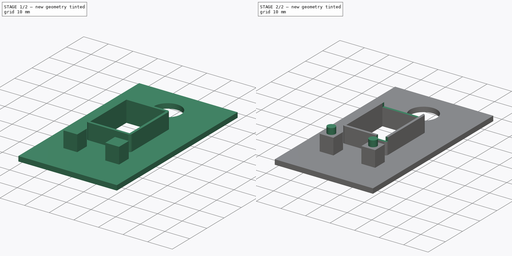
[diagram: build sequence overview — one tinted view per stage of 2, left to right]
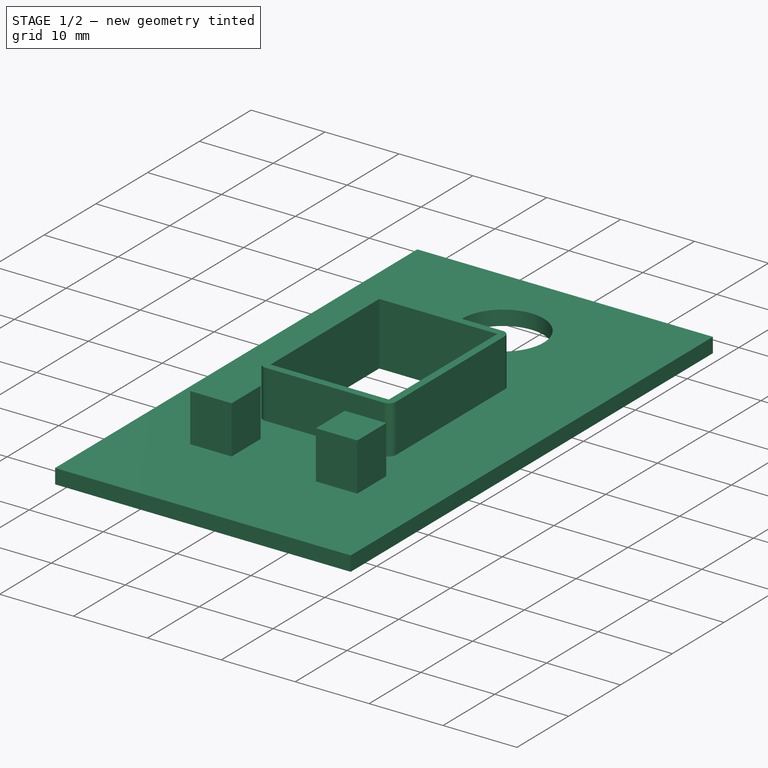
[diagram: stage 1 of 2 — iso view after this stage's code; geometry added in this stage tinted green]
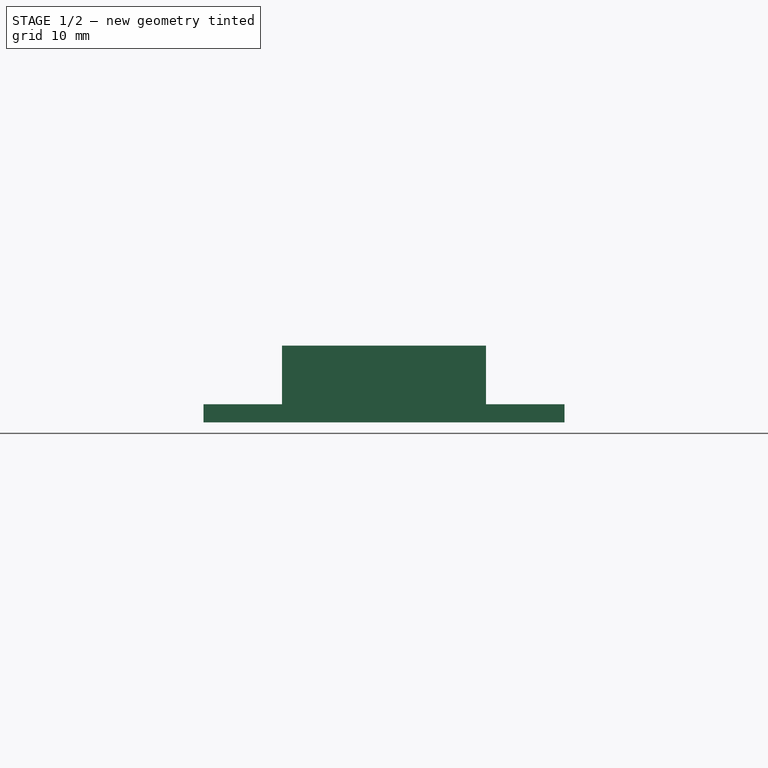
[diagram: stage 1 of 2 — front view after this stage's code; geometry added in this stage tinted green]
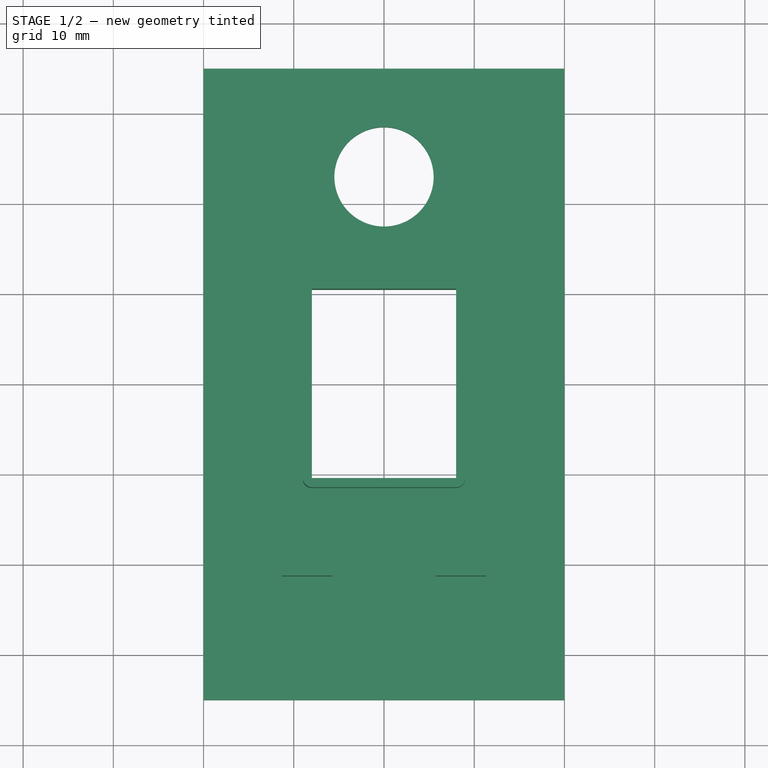
[diagram: stage 1 of 2 — top view after this stage's code; geometry added in this stage tinted green]
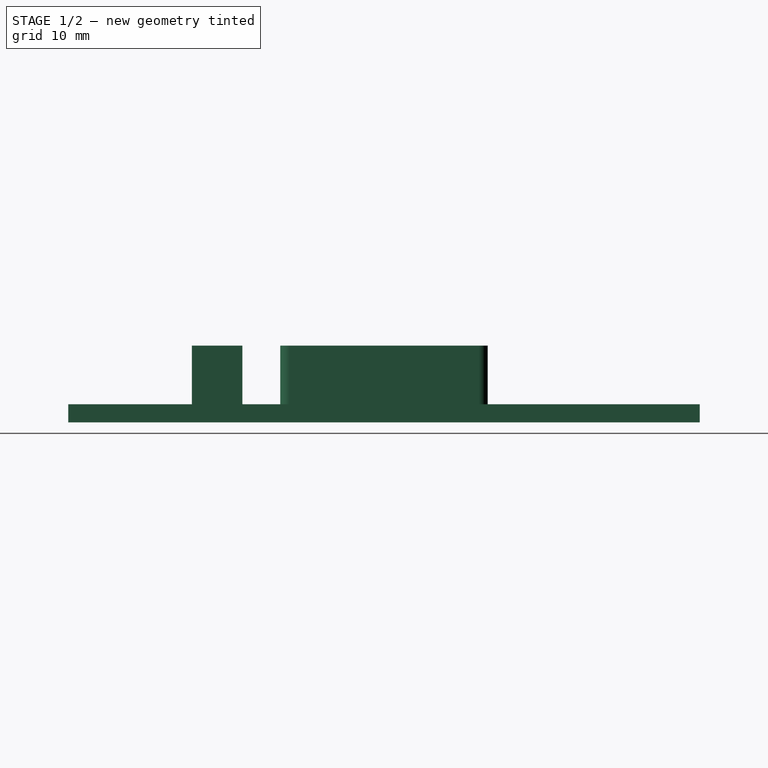
[diagram: stage 1 of 2 — right view after this stage's code; geometry added in this stage tinted green]
FCSTD DOCUMENT  (FreeCAD 0.22R37249 (Git))
Label: multi-sensor-hass-lid
License: All rights reserved
LicenseURL: http://en.wikipedia.org/wiki/All_rights_reserved
objects: Sketcher::SketchObject×4, PartDesign::Pad×3, PartDesign::Pocket×1, PartDesign::Body×1
note: 13 computed .brp shape members not serialized (recipe doc carries the construction recipe); baked Part::Feature solids carry a one-line shape summary decoded from their .brp

FEATURE [Sketcher::SketchObject] Sketch
  AttachmentSupport = -> [XY_Plane]
  FullyConstrained = true
  MapMode = 5
  sketch-geometry (11):
    g0: LineSegment StartX=-20 StartY=35 StartZ=0 EndX=-20 EndY=-35 EndZ=0
    g1: LineSegment StartX=-20 StartY=-35 StartZ=0 EndX=20 EndY=-35 EndZ=0
    g2: LineSegment StartX=20 StartY=-35 StartZ=0 EndX=20 EndY=35 EndZ=0
    g3: LineSegment StartX=20 StartY=35 StartZ=0 EndX=-20 EndY=35 EndZ=0
    g4: GeomPoint X=0 Y=0 Z=0
    g5: Circle CenterX=0 CenterY=23 CenterZ=0 NormalX=0 NormalY=0 NormalZ=1 AngleXU=0 Radius=5.5
    g6: LineSegment StartX=-8 StartY=-10.5 StartZ=0 EndX=8 EndY=-10.5 EndZ=0
    g7: LineSegment StartX=8 StartY=-10.5 StartZ=0 EndX=8 EndY=10.5 EndZ=0
    g8: LineSegment StartX=8 StartY=10.5 StartZ=0 EndX=-8 EndY=10.5 EndZ=0
    g9: LineSegment StartX=-8 StartY=10.5 StartZ=0 EndX=-8 EndY=-10.5 EndZ=0
    g10: GeomPoint X=0 Y=0 Z=0
  constraints (27):
    c: Coincident(g0,g1)
    c: Coincident(g1,g2)
    c: Coincident(g2,g3)
    c: Coincident(g3,g0)
    c: Vertical(g0)
    c: Vertical(g2)
    c: Horizontal(g1)
    c: Horizontal(g3)
    c: Symmetric(g2,g0,g4)
    c: Coincident(g4,g-1)
    c: DistanceX(g1,g1) = 40
    c: DistanceY(g0,g0) = 70
    c: PointOnObject(g5,g-2)
    c: Diameter(g5) = 11
    c: Distance(g5,g3) = 12
    c: Coincident(g6,g7)
    c: Coincident(g7,g8)
    c: Coincident(g8,g9)
    c: Coincident(g9,g6)
    c: Horizontal(g6)
    c: Horizontal(g8)
    c: Vertical(g7)
    c: Vertical(g9)
    c: Symmetric(g8,g6,g10)
    c: Distance(g7,g9) = 16
    c: Distance(g6,g8) = 21
    c: Coincident(g10,g4)
FEATURE [PartDesign::Pad] Pad
  Direction = (0,0,1)
  Length = 2
  Length2 = 10
  Profile = -> Sketch
  ReferenceAxis = -> Sketch [N_Axis]
  Suppressed = false
  Type = 0
FEATURE [Sketcher::SketchObject] Sketch001
  AttachmentSupport = -> [Pad]
  ExternalGeometry = -> [Pad]
  FullyConstrained = true
  MapMode = 5
  Placement = pos=(0,0,2) rot=(0,0,1;0rad)
  sketch-geometry (23):
    g0: LineSegment StartX=-8 StartY=10.5 StartZ=0 EndX=-8 EndY=-10.5 EndZ=0
    g1: LineSegment StartX=-8 StartY=-10.5 StartZ=0 EndX=8 EndY=-10.5 EndZ=0
    g2: LineSegment StartX=8 StartY=-10.5 StartZ=0 EndX=8 EndY=10.5 EndZ=0
    g3: LineSegment StartX=8 StartY=10.5 StartZ=0 EndX=-8 EndY=10.5 EndZ=0
    g4: GeomPoint X=0 Y=2.9e-15 Z=0
    g5: LineSegment StartX=-11.3 StartY=-15.7 StartZ=0 EndX=-11.3 EndY=-21.3 EndZ=0
    g6: LineSegment StartX=-11.3 StartY=-21.3 StartZ=0 EndX=-5.7 EndY=-21.3 EndZ=0
    g7: LineSegment StartX=-5.7 StartY=-21.3 StartZ=0 EndX=-5.7 EndY=-15.7 EndZ=0
    g8: LineSegment StartX=-5.7 StartY=-15.7 StartZ=0 EndX=-11.3 EndY=-15.7 EndZ=0
    g9: GeomPoint X=-8.5 Y=-18.5 Z=0
    g10: LineSegment StartX=5.7 StartY=-15.7 StartZ=0 EndX=5.7 EndY=-21.3 EndZ=0
    g11: LineSegment StartX=5.7 StartY=-21.3 StartZ=0 EndX=11.3 EndY=-21.3 EndZ=0
    g12: LineSegment StartX=11.3 StartY=-21.3 StartZ=0 EndX=11.3 EndY=-15.7 EndZ=0
    g13: LineSegment StartX=11.3 StartY=-15.7 StartZ=0 EndX=5.7 EndY=-15.7 EndZ=0
    g14: GeomPoint X=8.5 Y=-18.5 Z=0
    g15: LineSegment StartX=-8 StartY=-11.5 StartZ=0 EndX=8 EndY=-11.5 EndZ=0
    g16: ArcOfCircle CenterX=8 CenterY=-10.5 CenterZ=0 NormalX=0 NormalY=0 NormalZ=-1 AngleXU=1.5708 Radius=1 StartAngle=1.5708 EndAngle=3.14159
    g17: LineSegment StartX=9 StartY=-10.5 StartZ=0 EndX=9 EndY=10.5 EndZ=0
    g18: ArcOfCircle CenterX=8 CenterY=10.5 CenterZ=0 NormalX=0 NormalY=0 NormalZ=-1 AngleXU=0 Radius=1 StartAngle=1.5708 EndAngle=3.14159
    g19: LineSegment StartX=8 StartY=11.5 StartZ=0 EndX=-8 EndY=11.5 EndZ=0
    g20: ArcOfCircle CenterX=-8 CenterY=10.5 CenterZ=0 NormalX=0 NormalY=0 NormalZ=-1 AngleXU=-1.5708 Radius=1 StartAngle=1.5708 EndAngle=3.14159
    g21: LineSegment StartX=-9 StartY=10.5 StartZ=0 EndX=-9 EndY=-10.5 EndZ=0
    g22: ArcOfCircle CenterX=-8 CenterY=-10.5 CenterZ=0 NormalX=0 NormalY=0 NormalZ=-1 AngleXU=-3.14159 Radius=1 StartAngle=1.5708 EndAngle=3.14159
  constraints (52):
    c: Coincident(g0,g1)
    c: Coincident(g1,g2)
    c: Coincident(g2,g3)
    c: Coincident(g3,g0)
    c: Vertical(g0)
    c: Horizontal(g1)
    c: Horizontal(g3)
    c: Symmetric(g2,g0,g4)
    c: PointOnObject(g4,g-2)
    c: Coincident(g1,g-5)
    c: Coincident(g5,g6)
    c: Coincident(g6,g7)
    c: Coincident(g7,g8)
    c: Coincident(g8,g5)
    c: Vertical(g5)
    c: Vertical(g7)
    c: Horizontal(g6)
    c: Horizontal(g8)
    c: Symmetric(g7,g5,g9)
    c: Coincident(g10,g11)
    c: Coincident(g11,g12)
    c: Coincident(g12,g13)
    c: Coincident(g13,g10)
    c: Vertical(g10)
    c: Vertical(g12)
    c: Horizontal(g11)
    c: Horizontal(g13)
    c: Symmetric(g12,g10,g14)
    c: Equal(g5,g8)
    c: Equal(g8,g10)
    c: Equal(g10,g13)
    c: DistanceX(g6,g6) = 5.6
    c: Symmetric(g9,g14,g-2)
    c: Coincident(g2,g-4)
    c: Tangent(g15,g16) = -1.5708
    c: Tangent(g15,g22) = -1.5708
    c: Tangent(g16,g17) = -1.5708
    c: Tangent(g17,g18) = -1.5708
    c: Tangent(g18,g19) = -1.5708
    c: Tangent(g19,g20) = -1.5708
    c: Tangent(g20,g21) = -1.5708
    c: Tangent(g21,g22) = -1.5708
    c: Coincident(g22,g0)
    c: DistanceY(g9,g0) = 8
    c: DistanceX(g9,g0) = 0.5
    c: Coincident(g20,g0)
    c: Coincident(g18,g2)
    c: Coincident(g16,g1)
    c: Parallel(g17,g21)
    c: Parallel(g15,g19)
    c: Parallel(g15,g1)
    c: Distance(g17,g2) = 1
FEATURE [PartDesign::Pad] Pad001
  BaseFeature = -> Pad
  Direction = (0,0,1)
  Length = 6.5
  Length2 = 10
  Profile = -> Sketch001
  ReferenceAxis = -> Sketch001 [N_Axis]
  Suppressed = false
  Type = 0
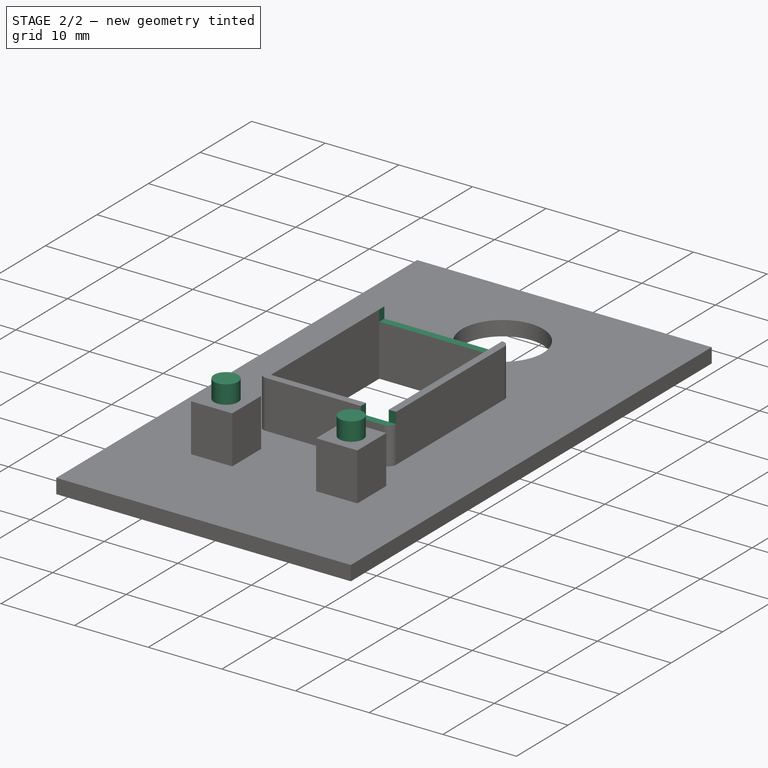
[diagram: stage 2 of 2 — iso view after this stage's code; geometry added in this stage tinted green]
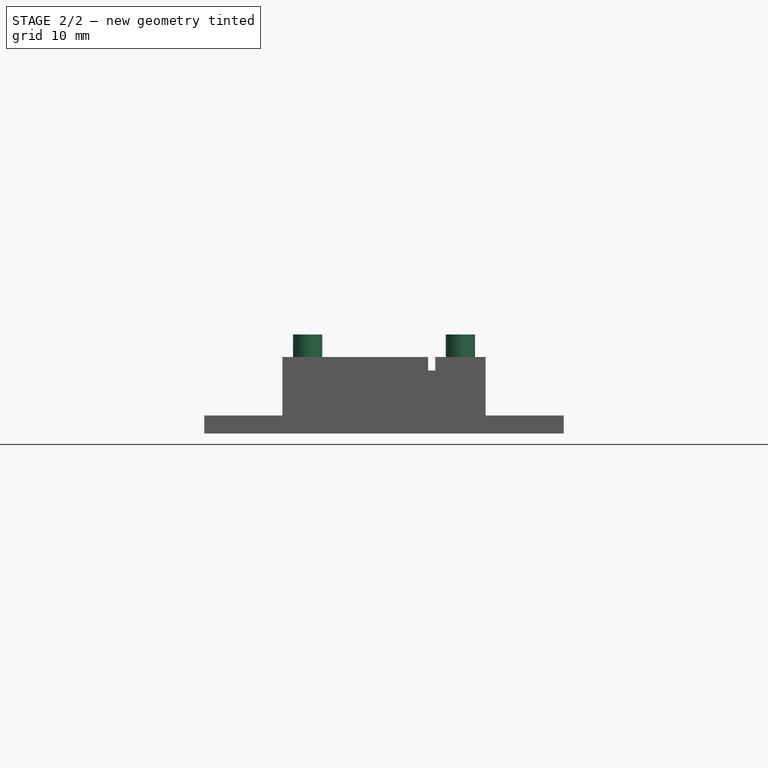
[diagram: stage 2 of 2 — front view after this stage's code; geometry added in this stage tinted green]
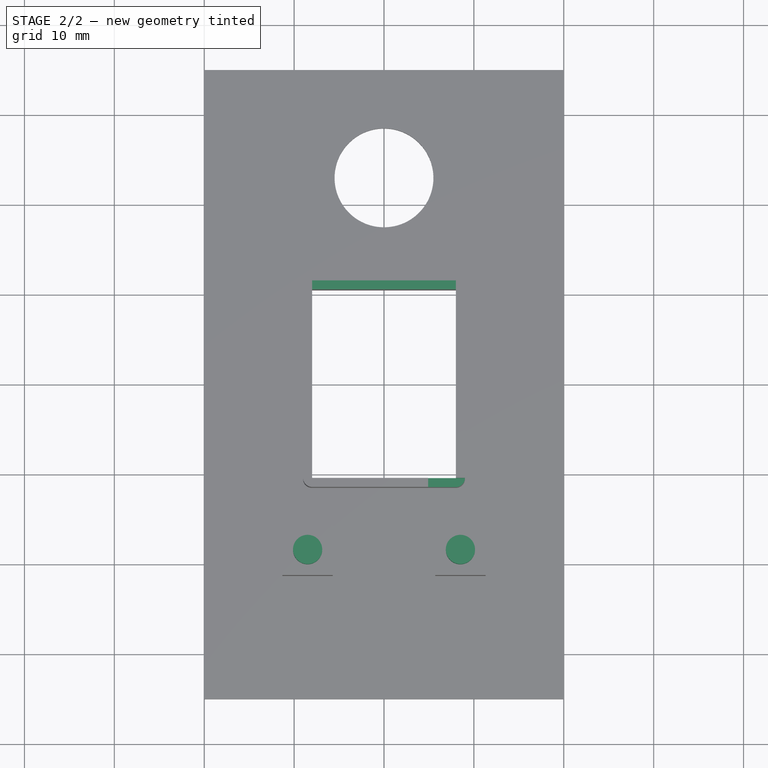
[diagram: stage 2 of 2 — top view after this stage's code; geometry added in this stage tinted green]
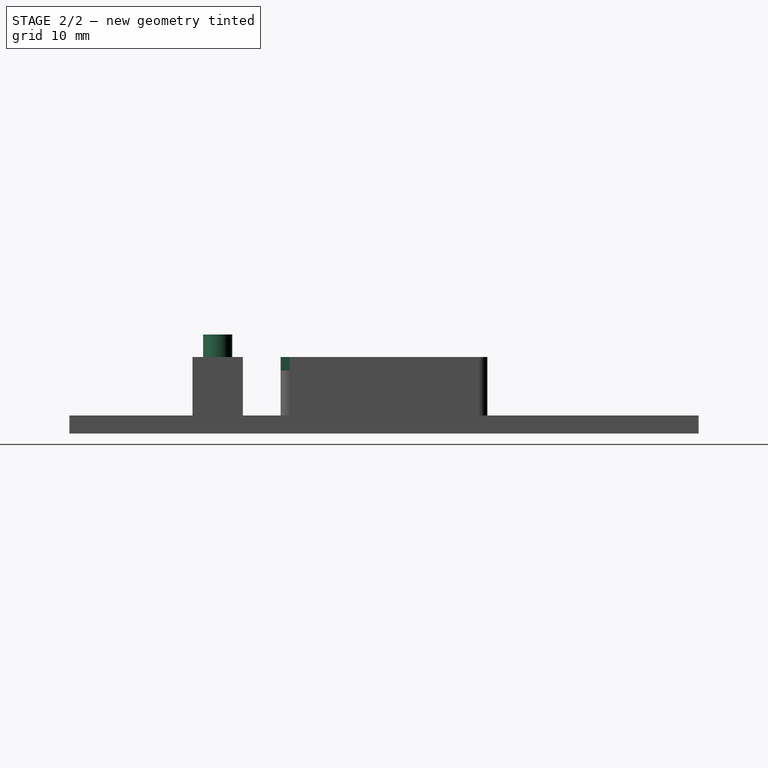
[diagram: stage 2 of 2 — right view after this stage's code; geometry added in this stage tinted green]
FEATURE [Sketcher::SketchObject] Sketch002
  AttachmentSupport = -> [Pad001]
  ExternalGeometry = -> [Pad001]
  FullyConstrained = false
  MapMode = 5
  Placement = pos=(0,0,8.5) rot=(0,0,1;0rad)
  sketch-geometry (9):
    g0: LineSegment StartX=8 StartY=11.5 StartZ=0 EndX=-8 EndY=11.5 EndZ=0
    g1: LineSegment StartX=-8 StartY=11.5 StartZ=0 EndX=-8 EndY=10.5 EndZ=0
    g2: LineSegment StartX=-8 StartY=10.5 StartZ=0 EndX=8 EndY=10.5 EndZ=0
    g3: LineSegment StartX=8 StartY=10.5 StartZ=0 EndX=8 EndY=11.5 EndZ=0
    g4: GeomPoint X=0 Y=11 Z=0
    g5: LineSegment StartX=4.90733 StartY=-10.5 StartZ=0 EndX=4.90733 EndY=-11.5 EndZ=0
    g6: LineSegment StartX=4.90733 StartY=-11.5 StartZ=0 EndX=9 EndY=-11.5 EndZ=0
    g7: LineSegment StartX=9 StartY=-11.5 StartZ=0 EndX=9 EndY=-10.5 EndZ=0
    g8: LineSegment StartX=9 StartY=-10.5 StartZ=0 EndX=4.90733 EndY=-10.5 EndZ=0
  constraints (22):
    c: Coincident(g0,g1)
    c: Coincident(g1,g2)
    c: Coincident(g2,g3)
    c: Coincident(g3,g0)
    c: Horizontal(g0)
    c: Horizontal(g2)
    c: Vertical(g3)
    c: Symmetric(g2,g0,g4)
    c: PointOnObject(g4,g-2)
    c: Coincident(g5,g6)
    c: Coincident(g6,g7)
    c: Coincident(g7,g8)
    c: Coincident(g8,g5)
    c: Vertical(g5)
    c: Vertical(g7)
    c: Horizontal(g6)
    c: Horizontal(g8)
    c: Coincident(g0,g-4)
    c: Coincident(g-3,g1)
    c: PointOnObject(g7,g-7)
    c: PointOnObject(g5,g-5)
    c: PointOnObject(g5,g-6)
FEATURE [PartDesign::Pocket] Pocket
  BaseFeature = -> Pad001
  Direction = (0,0,-1)
  Length = 1.5
  Length2 = 5
  Profile = -> Sketch002
  ReferenceAxis = -> Sketch002 [N_Axis]
  Suppressed = false
  Type = 0
FEATURE [Sketcher::SketchObject] Sketch003
  AttachmentSupport = -> [Pocket]
  ExternalGeometry = -> [Pocket]
  FullyConstrained = true
  MapMode = 5
  Placement = pos=(0,0,8.5) rot=(0,0,1;0rad)
  sketch-geometry (2):
    g0: Circle CenterX=-8.5 CenterY=-18.5 CenterZ=0 NormalX=0 NormalY=0 NormalZ=1 AngleXU=0 Radius=1.625
    g1: Circle CenterX=8.5 CenterY=-18.5 CenterZ=0 NormalX=0 NormalY=0 NormalZ=1 AngleXU=0 Radius=1.625
  constraints (4):
    c: Equal(g1,g0)
    c: Symmetric(g-4,g-3,g0)
    c: Diameter(g0) = 3.25
    c: Symmetric(g-6,g-5,g1)
FEATURE [PartDesign::Pad] Pad002
  BaseFeature = -> Pocket
  Direction = (0,0,1)
  Length = 2.5
  Length2 = 10
  Profile = -> Sketch003
  ReferenceAxis = -> Sketch003 [N_Axis]
  Suppressed = false
  Type = 0
FEATURE [PartDesign::Body] Body
  Group = -> [Sketch,Pad,Sketch001,Pad001,Sketch002,Pocket,Sketch003,Pad002]
  Origin = -> Origin
  Tip = -> Pad002
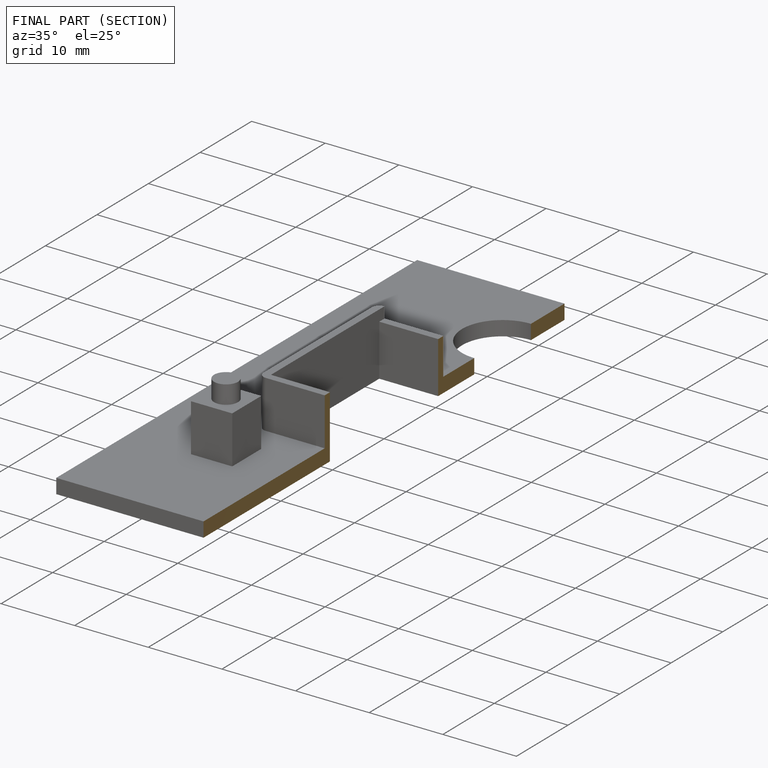
[diagram: finished part — half-section view (interior)]
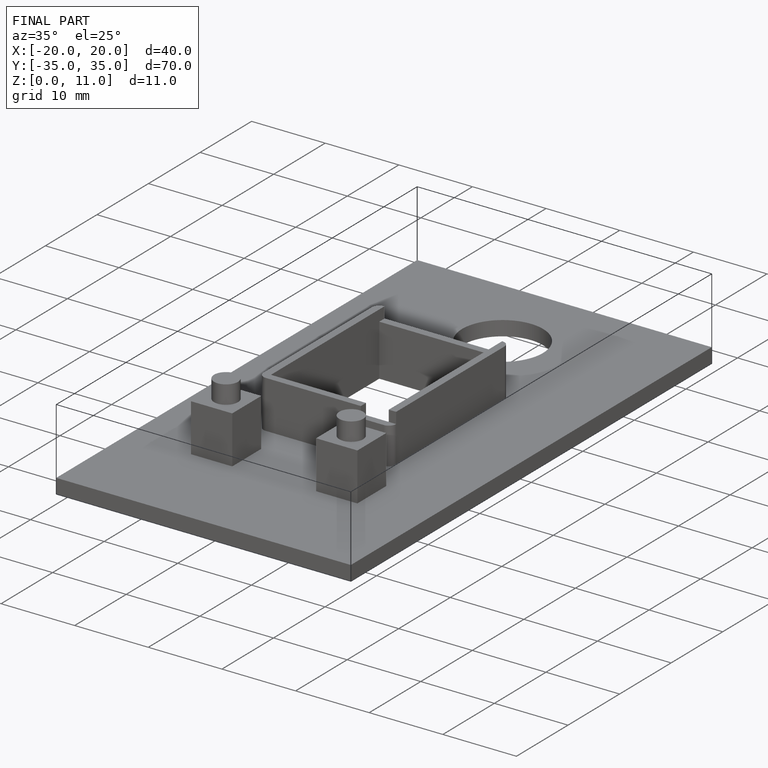
[diagram: finished part — iso view with bounding-box wireframe]
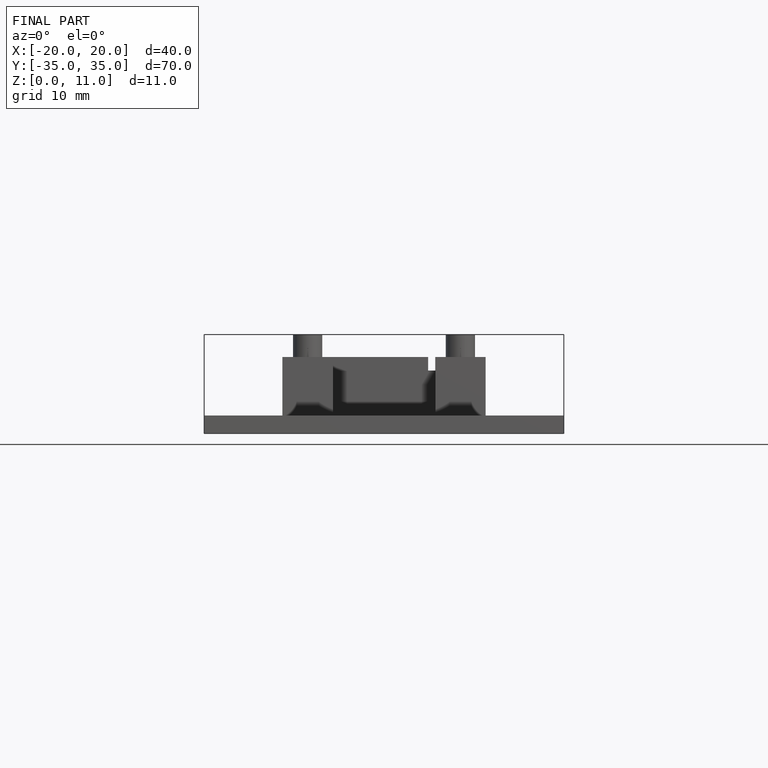
[diagram: finished part — front view with bounding-box wireframe]
